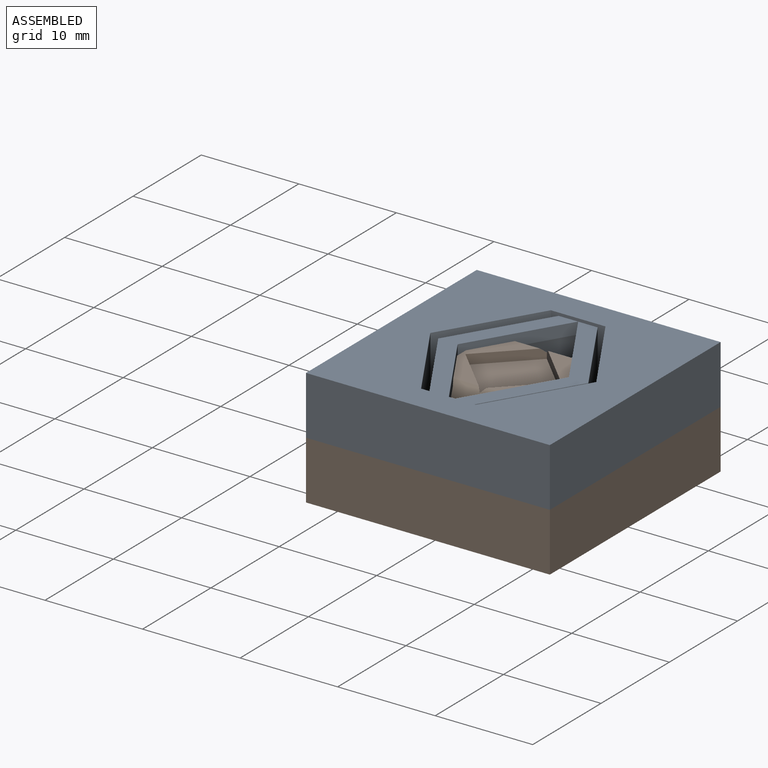
[diagram: assembled view]
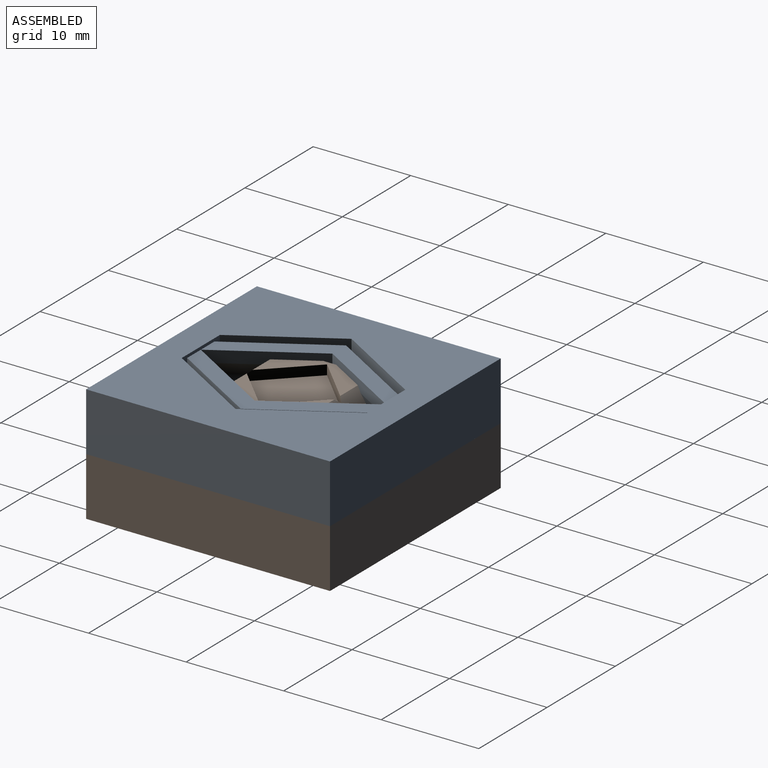
[diagram: assembled view, second angle]
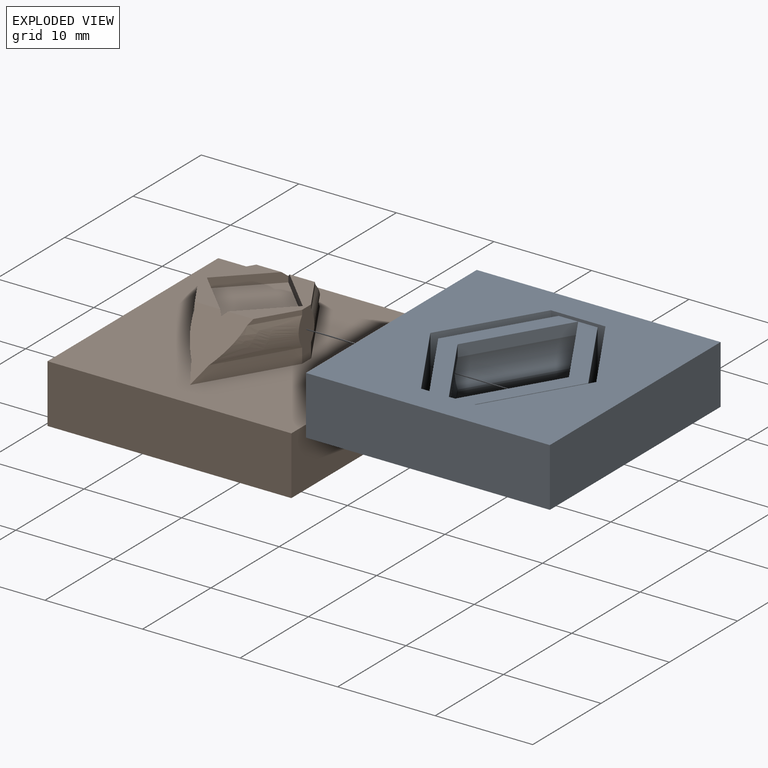
[diagram: exploded view]
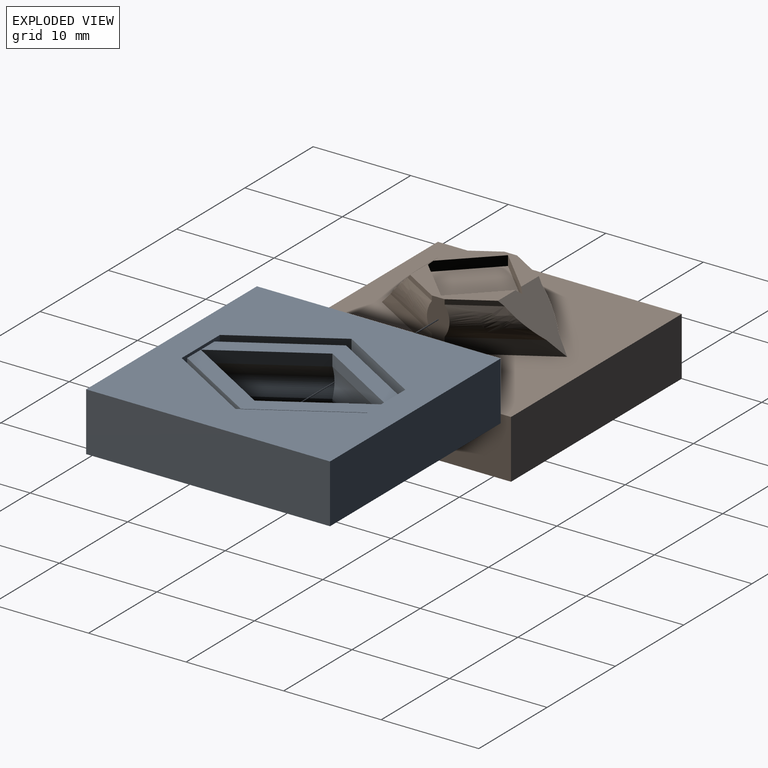
[diagram: exploded view, second angle]
FCSTD DOCUMENT  (FreeCAD 1.1R14555 (Git shallow))
Label: DockLink_assembly
License: All rights reserved
LicenseURL: https://en.wikipedia.org/wiki/All_rights_reserved
objects: App::Link×2, App::Point×1, App::FeaturePython×1, Assembly::JointGroup×1, Assembly::AssemblyObject×1
EXTERNAL_REF file=DockLink_male.FCStd obj=Body
EXTERNAL_REF file=DockLink_female.FCStd obj=Body

FEATURE [App::Point] Origin001
  Role = Origin
FEATURE [App::Link] DockLink_male
  LinkedObject = -> <external DockLink_male.FCStd>#Body
FEATURE [App::Link] Body_DockLink_female
  LinkPlacement = pos=(1.5e-15,7.5e-15,6) rot=(0,1,0;3.14159rad)
  LinkedObject = -> <external DockLink_female.FCStd>#Body
  Placement = pos=(1.5e-15,7.5e-15,6) rot=(0,1,0;3.14159rad)
FEATURE [App::FeaturePython] Joint  label="Fixed"  # Assembly joint (typed FeaturePython)
  Angle = 0
  AngleMax = 0
  AngleMin = 0
  Detach1 = false
  Detach2 = false
  Distance = 0
  Distance2 = 0
  EnableAngleMax = false
  EnableAngleMin = false
  EnableLengthMax = false
  EnableLengthMin = false
  JointType = 0 (Fixed)
  LengthMax = 0
  LengthMin = 0
  Offset2 = pos=(0,0,0) rot=(0,0,1;3.14159rad)
  Placement1 = pos=(-1.1e-15,-15,6) rot=(0.707107,0,0.707107;3.14159rad)
  Placement2 = pos=(0,-15,0) rot=(0,-1,0;4.71239rad)
  Reference1 = -> Assembly [Body_DockLink_female.Edge4,Body_DockLink_female.Edge4]
  Reference2 = -> Assembly [DockLink_male.Edge39,DockLink_male.Edge39]
  Suppressed = false
FEATURE [Assembly::JointGroup] Joints
  Group = -> [Joint]
FEATURE [Assembly::AssemblyObject] Assembly
  Group = -> [Joints,DockLink_male,Body_DockLink_female,Joint]
  Origin = -> Origin
  Type = Assembly

RESOLVED EXTERNAL PARTS (link-assembly join: the EXTERNAL_REF files above that resolve inside this repo's crawl, each included once):
---- part DockLink_female.FCStd = doc fcstd_dc0a90694cc4 ----
FCSTD DOCUMENT  (FreeCAD 1.1R20251031 (Git shallow))
Label: DockLink_female
License: All rights reserved
LicenseURL: https://en.wikipedia.org/wiki/All_rights_reserved
objects: Sketcher::SketchObject×5, App::Point×1, App::VarSet×1, PartDesign::Pad×1, PartDesign::SubtractiveLoft×1, PartDesign::Chamfer×1, PartDesign::Pocket×1, PartDesign::Body×1
note: 23 computed .brp shape members not serialized (recipe doc carries the construction recipe); baked Part::Feature solids carry a one-line shape summary decoded from their .brp

FEATURE [App::Point] Origin001
  Role = Origin
FEATURE [Sketcher::SketchObject] Sketch  label="Sketch_clip_base"
  ArcFitTolerance = 1e-06
  AttachmentSupport = -> [Origin]
  ExternalTypes = [0]
  FullyConstrained = true
  MakeInternals = false
  MapMode = 5
  expr: Constraints[10] = VarSet.height_printbase
  expr: Constraints[11] = VarSet.width_printbase
  expr: Constraints[59] = VarSet.thickness_clip
  expr: Constraints[60] = VarSet.indent_depth_clip + 0.5 mm
  expr: Constraints[70] = VarSet.border_vert
  expr: Constraints[71] = VarSet.border_hori
  sketch-geometry (28):
    g0: LineSegment StartX=-12.5 StartY=12.5 StartZ=0 EndX=-12.5 EndY=-12.5 EndZ=0
    g1: LineSegment StartX=-12.5 StartY=-12.5 StartZ=0 EndX=12.5 EndY=-12.5 EndZ=0
    g2: LineSegment StartX=12.5 StartY=-12.5 StartZ=0 EndX=12.5 EndY=12.5 EndZ=0
    g3: LineSegment StartX=12.5 StartY=12.5 StartZ=0 EndX=-12.5 EndY=12.5 EndZ=0
    g4: GeomPoint [constr] X=0 Y=0 Z=0
    g5: LineSegment [constr] StartX=-8.5 StartY=9.5 StartZ=0 EndX=-8.5 EndY=-9.5 EndZ=0
    g6: LineSegment [constr] StartX=-8.5 StartY=-9.5 StartZ=0 EndX=8.5 EndY=-9.5 EndZ=0
    g7: LineSegment [constr] StartX=8.5 StartY=-9.5 StartZ=0 EndX=8.5 EndY=9.5 EndZ=0
    g8: LineSegment [constr] StartX=8.5 StartY=9.5 StartZ=0 EndX=-8.5 EndY=9.5 EndZ=0
    g9: GeomPoint [constr] X=0 Y=0 Z=0
    g10: LineSegment StartX=0 StartY=9.5 StartZ=0 EndX=-5.7 EndY=0 EndZ=0
    g11: LineSegment StartX=-5.7 StartY=0 StartZ=0 EndX=0 EndY=-9.5 EndZ=0
    g12: LineSegment StartX=3e-16 StartY=-9.5 StartZ=0 EndX=5.7 EndY=0 EndZ=0
    g13: LineSegment StartX=5.7 StartY=0 StartZ=0 EndX=0 EndY=9.5 EndZ=0
    g14: LineSegment StartX=-2 StartY=9.5 StartZ=0 EndX=-7.7 EndY=0 EndZ=0
    g15: LineSegment StartX=-7.7 StartY=0 StartZ=0 EndX=-2 EndY=-9.5 EndZ=0
    g16: LineSegment StartX=2 StartY=-9.5 StartZ=0 EndX=7.7 EndY=0 EndZ=0
    g17: LineSegment StartX=7.7 StartY=0 StartZ=0 EndX=2 EndY=9.5 EndZ=0
    g18: LineSegment StartX=-8.5 StartY=5.9e-15 StartZ=0 EndX=-2.8 EndY=9.5 EndZ=0
    g19: LineSegment StartX=-8.5 StartY=5.9e-15 StartZ=0 EndX=-2.8 EndY=-9.5 EndZ=0
    g20: LineSegment StartX=2.8 StartY=-9.5 StartZ=0 EndX=8.5 EndY=5.3e-15 EndZ=0
    g21: LineSegment StartX=8.5 StartY=5.3e-15 StartZ=0 EndX=2.8 EndY=9.5 EndZ=0
    g22: LineSegment [constr] StartX=-7.7 StartY=0 StartZ=0 EndX=-5.7 EndY=0 EndZ=0
    g23: LineSegment [constr] StartX=5.7 StartY=0 StartZ=0 EndX=7.7 EndY=0 EndZ=0
    g24: LineSegment StartX=-2.8 StartY=9.5 StartZ=0 EndX=-2 EndY=9.5 EndZ=0
    g25: LineSegment StartX=2 StartY=9.5 StartZ=0 EndX=2.8 EndY=9.5 EndZ=0
    g26: LineSegment StartX=-2.8 StartY=-9.5 StartZ=0 EndX=-2 EndY=-9.5 EndZ=0
    g27: LineSegment StartX=2 StartY=-9.5 StartZ=0 EndX=2.8 EndY=-9.5 EndZ=0
  constraints (72):
    c: Coincident(g0,g1)
    c: Coincident(g1,g2)
    c: Coincident(g2,g3)
    c: Coincident(g3,g0)
    c: Vertical(g0)
    c: Vertical(g2)
    c: Horizontal(g1)
    c: Horizontal(g3)
    c: Symmetric(g2,g0,g4)
    c: Coincident(g4,g-1)
    c: DistanceY(g0,g0) = 25
    c: DistanceX(g3,g3) = 25
    c: Coincident(g5,g6)
    c: Coincident(g6,g7)
    c: Coincident(g7,g8)
    c: Coincident(g8,g5)
    c: Vertical(g5)
    c: Vertical(g7)
    c: Horizontal(g6)
    c: Horizontal(g8)
    c: Symmetric(g7,g5,g9)
    c: Coincident(g9,g4)
    c: Symmetric(g8,g8,g10)
    c: PointOnObject(g10,g-1)
    c: Coincident(g11,g10)
    c: Symmetric(g6,g6,g11)
    c: Coincident(g12,g11)
    c: Coincident(g13,g12)
    c: Coincident(g13,g10)
    c: PointOnObject(g14,g8)
    c: PointOnObject(g14,g-1)
    c: Coincident(g15,g14)
    c: PointOnObject(g15,g6)
    c: PointOnObject(g16,g6)
    c: PointOnObject(g16,g-1)
    c: Coincident(g17,g16)
    c: PointOnObject(g17,g8)
    c: Parallel(g10,g14)
    c: Parallel(g11,g15)
    c: Parallel(g12,g16)
    c: Parallel(g13,g17)
    c: Symmetric(g5,g5,g18)
    c: PointOnObject(g18,g8)
    c: Coincident(g19,g18)
    c: PointOnObject(g19,g6)
    c: PointOnObject(g20,g6)
    c: Symmetric(g7,g7,g20)
    c: Coincident(g21,g20)
    c: PointOnObject(g21,g8)
    c: Parallel(g17,g21)
    c: Parallel(g16,g20)
    c: Parallel(g15,g19)
    c: Parallel(g18,g14)
    c: Coincident(g22,g14)
    c: Coincident(g22,g10)
    c: Coincident(g23,g12)
    c: Coincident(g23,g16)
    c: Equal(g22,g23)
    c: Symmetric(g10,g12,g4)
    c: Distance(g22,g22) = 2
    c: Distance(g14,g18) = 0.8
    c: DistanceX(g10,g12) = 11.4  'width_male'
    c: Coincident(g24,g18)
    c: Coincident(g24,g14)
    c: Coincident(g25,g17)
    c: Coincident(g25,g21)
    c: Coincident(g26,g19)
    c: Coincident(g26,g15)
    c: Coincident(g27,g16)
    c: Coincident(g27,g20)
    c: Distance(g1,g6) = 3
    c: Distance(g2,g7) = 4
FEATURE [App::VarSet] VarSet
  border_hori = 4
  border_vert = 3
  height_clip = 20
  height_printbase = 25
  indent_depth_clip = 0.3
  indent_distance = 3
  indent_height = 3
  thickness_base = 6
  thickness_clip = 2
  width_clip = 20
  width_printbase = 25
FEATURE [PartDesign::Pad] Pad  label="Pad_clip_base"
  Direction = (0,0,1)
  Length = 6
  Length2 = 10
  Profile = -> Sketch
  ReferenceAxis = -> Sketch [N_Axis]
  Refine = true
  SideType = 0
  Suppressed = false
  Type = 0
  Type2 = 0
  expr: Length = VarSet.thickness_base
FEATURE [Sketcher::SketchObject] Sketch002  label="Sketch_indent_top"
  ArcFitTolerance = 1e-06
  AttachmentOffset = pos=(0,0,-1.5) rot=(0,0,1;0rad)
  AttachmentSupport = -> [Pad]
  ExternalGeometry = -> [Pad]
  ExternalTypes = [0,0,0,0]
  FullyConstrained = true
  MakeInternals = false
  MapMode = 5
  Placement = pos=(0,0,4.5) rot=(0,0,1;0rad)
  expr: .AttachmentOffset.Base.z = -VarSet.indent_distance + VarSet.indent_height / 2
  sketch-geometry (4):
    g0: LineSegment StartX=-5.7 StartY=0 StartZ=0 EndX=-5.3e-15 EndY=-9.5 EndZ=0
    g1: LineSegment StartX=-5.3e-15 StartY=-9.5 StartZ=0 EndX=5.7 EndY=0 EndZ=0
    g2: LineSegment StartX=-5.7 StartY=0 StartZ=0 EndX=-2.7e-15 EndY=9.5 EndZ=0
    g3: LineSegment StartX=5.7 StartY=0 StartZ=0 EndX=-3.6e-15 EndY=9.5 EndZ=0
  constraints (8):
    c: Coincident(g0,g-5)
    c: Coincident(g0,g-6)
    c: Coincident(g1,g0)
    c: Coincident(g1,g-4)
    c: Coincident(g2,g0)
    c: Coincident(g2,g-3)
    c: Coincident(g3,g1)
    c: Coincident(g3,g2)
FEATURE [Sketcher::SketchObject] Sketch003  label="Sketch_indent_bottom"
  ArcFitTolerance = 1e-06
  AttachmentOffset = pos=(0,0,-4.5) rot=(0,0,1;0rad)
  AttachmentSupport = -> [Pad]
  ExternalGeometry = -> [Pad]
  ExternalTypes = [0,0,0,0]
  FullyConstrained = true
  MakeInternals = false
  MapMode = 5
  Placement = pos=(0,0,1.5) rot=(0,0,1;0rad)
  expr: .AttachmentOffset.Base.z = -VarSet.indent_distance - VarSet.indent_height / 2
  sketch-geometry (4):
    g0: LineSegment StartX=-5.7 StartY=0 StartZ=0 EndX=-9e-16 EndY=9.5 EndZ=0
    g1: LineSegment StartX=-9e-16 StartY=9.5 StartZ=0 EndX=5.7 EndY=0 EndZ=0
    g2: LineSegment StartX=9e-16 StartY=-9.5 StartZ=0 EndX=5.7 EndY=0 EndZ=0
    g3: LineSegment StartX=-5.7 StartY=0 StartZ=0 EndX=9e-16 EndY=-9.5 EndZ=0
  constraints (8):
    c: Coincident(g0,g-4)
    c: Coincident(g0,g-5)
    c: Coincident(g1,g0)
    c: Coincident(g1,g-6)
    c: Coincident(g2,g-3)
    c: Coincident(g2,g1)
    c: Coincident(g3,g0)
    c: Coincident(g3,g2)
FEATURE [Sketcher::SketchObject] Sketch001  label="Sketch_indent_middle"
  ArcFitTolerance = 1e-06
  AttachmentOffset = pos=(0,0,-3) rot=(0,0,1;0rad)
  AttachmentSupport = -> [Pad]
  ExternalGeometry = -> [Pad,Sketch003]
  ExternalTypes = [0,0,0,0,0,0,0,0]
  FullyConstrained = true
  MakeInternals = false
  MapMode = 5
  Placement = pos=(0,0,3) rot=(0,0,1;0rad)
  expr: .AttachmentOffset.Base.z = -VarSet.indent_distance
  expr: Constraints[1] = VarSet.indent_depth_clip
  sketch-geometry (4):
    g0: LineSegment StartX=-6 StartY=0 StartZ=0 EndX=0 EndY=10 EndZ=0
    g1: LineSegment StartX=0 StartY=10 StartZ=0 EndX=6 EndY=0 EndZ=0
    g2: LineSegment StartX=6 StartY=0 StartZ=0 EndX=0 EndY=-10 EndZ=0
    g3: LineSegment StartX=-6 StartY=0 StartZ=0 EndX=0 EndY=-10 EndZ=0
  constraints (12):
    c: PointOnObject(g0,g-1)
    c: Distance(g0,g-3) = 0.3
    c: PointOnObject(g0,g-2)
    c: Coincident(g1,g0)
    c: PointOnObject(g1,g-1)
    c: Coincident(g2,g1)
    c: PointOnObject(g2,g-2)
    c: Coincident(g3,g0)
    c: Coincident(g3,g2)
    c: Parallel(g3,g-7)
    c: Parallel(g1,g-9)
    c: Parallel(g2,g-10)
FEATURE [PartDesign::SubtractiveLoft] SubtractiveLoft
  BaseFeature = -> Pad
  Closed = false
  Profile = -> Sketch002
  Refine = true
  Ruled = false
  Sections = -> [Sketch001,Sketch003]
  Suppressed = false
FEATURE [PartDesign::Chamfer] Chamfer
  Angle = 45
  Base = -> SubtractiveLoft [Edge32,Edge29,Edge30,Edge31]
  BaseFeature = -> SubtractiveLoft
  ChamferType = 1
  FlipDirection = false
  Refine = true
  Size = 0.5
  Size2 = 1.3
  SupportTransform = false
  Suppressed = false
  UseAllEdges = false
  expr: Size = VarSet.thickness_clip - 1.5 mm
  expr: Size2 = VarSet.indent_distance - VarSet.indent_height / 2 - 0.2 mm
FEATURE [Sketcher::SketchObject] Sketch004
  ArcFitTolerance = 1e-06
  AttachmentSupport = -> [SubtractiveLoft]
  ExternalGeometry = -> [SubtractiveLoft]
  ExternalTypes = [0,0,0,0]
  FullyConstrained = true
  MakeInternals = false
  MapMode = 5
  Placement = pos=(0,0,0) rot=(1,0,0;3.14159rad)
  sketch-geometry (2):
    g0: LineSegment StartX=-2.8 StartY=-9.5 StartZ=0 EndX=2.8 EndY=-9.5 EndZ=0
    g1: LineSegment StartX=-2.8 StartY=9.5 StartZ=0 EndX=2.8 EndY=9.5 EndZ=0
  constraints (4):
    c: Coincident(g0,g-5)
    c: Coincident(g0,g-6)
    c: Coincident(g1,g-3)
    c: Coincident(g1,g-4)
FEATURE [PartDesign::Pocket] Pocket
  BaseFeature = -> Chamfer
  Direction = (0,0,1)
  Length = 0.3
  Length2 = 5
  Profile = -> Sketch004
  ReferenceAxis = -> Sketch004 [N_Axis]
  Refine = true
  SideType = 0
  Suppressed = false
  Type = 0
  Type2 = 0
FEATURE [PartDesign::Body] Body  label="Body_DockLink_female"
  AllowCompound = true
  Group = -> [Sketch,Pad,Sketch001,Sketch002,Sketch003,SubtractiveLoft,Chamfer,VarSet,Sketch004,Pocket]
  Origin = -> Origin
  Tip = -> Pocket
---- part DockLink_male.FCStd = doc fcstd_4d2ef619000e ----
FCSTD DOCUMENT  (FreeCAD 1.1R20251031 (Git shallow))
Label: DockLink_male
License: All rights reserved
LicenseURL: https://en.wikipedia.org/wiki/All_rights_reserved
objects: Sketcher::SketchObject×8, PartDesign::Pocket×3, PartDesign::Pad×2, App::Point×1, App::VarSet×1, PartDesign::AdditiveLoft×1, PartDesign::Body×1
note: 35 computed .brp shape members not serialized (recipe doc carries the construction recipe); baked Part::Feature solids carry a one-line shape summary decoded from their .brp
EXTERNAL_REF file=DockLink_female.FCStd obj=VarSet

FEATURE [App::Point] Origin001
  Role = Origin
FEATURE [Sketcher::SketchObject] Sketch  label="Sketch_Base"
  ArcFitTolerance = 1e-06
  AttachmentSupport = -> [Origin]
  ExternalTypes = [0]
  FullyConstrained = true
  MakeInternals = false
  MapMode = 5
  expr: Constraints[10] = <<DockLink_female>>#VarSet.width_printbase
  expr: Constraints[11] = <<DockLink_female>>#VarSet.width_printbase
  expr: Constraints[22] = <<DockLink_female>>#VarSet.border_vert
  expr: Constraints[23] = <<DockLink_female>>#VarSet.border_hori
  sketch-geometry (10):
    g0: LineSegment StartX=-12.5 StartY=12.5 StartZ=0 EndX=-12.5 EndY=-12.5 EndZ=0
    g1: LineSegment StartX=-12.5 StartY=-12.5 StartZ=0 EndX=12.5 EndY=-12.5 EndZ=0
    g2: LineSegment StartX=12.5 StartY=-12.5 StartZ=0 EndX=12.5 EndY=12.5 EndZ=0
    g3: LineSegment StartX=12.5 StartY=12.5 StartZ=0 EndX=-12.5 EndY=12.5 EndZ=0
    g4: GeomPoint [constr] X=0 Y=0 Z=0
    g5: LineSegment [constr] StartX=-8.5 StartY=9.5 StartZ=0 EndX=-8.5 EndY=-9.5 EndZ=0
    g6: LineSegment [constr] StartX=-8.5 StartY=-9.5 StartZ=0 EndX=8.5 EndY=-9.5 EndZ=0
    g7: LineSegment [constr] StartX=8.5 StartY=-9.5 StartZ=0 EndX=8.5 EndY=9.5 EndZ=0
    g8: LineSegment [constr] StartX=8.5 StartY=9.5 StartZ=0 EndX=-8.5 EndY=9.5 EndZ=0
    g9: GeomPoint [constr] X=0 Y=0 Z=0
  constraints (24):
    c: Coincident(g0,g1)
    c: Coincident(g1,g2)
    c: Coincident(g2,g3)
    c: Coincident(g3,g0)
    c: Vertical(g0)
    c: Vertical(g2)
    c: Horizontal(g1)
    c: Horizontal(g3)
    c: Symmetric(g2,g0,g4)
    c: Coincident(g4,g-1)
    c: DistanceX(g3,g3) = 25
    c: DistanceY(g0,g0) = 25
    c: Coincident(g5,g6)
    c: Coincident(g6,g7)
    c: Coincident(g7,g8)
    c: Coincident(g8,g5)
    c: Vertical(g5)
    c: Vertical(g7)
    c: Horizontal(g6)
    c: Horizontal(g8)
    c: Symmetric(g7,g5,g9)
    c: Coincident(g9,g4)
    c: Distance(g3,g8) = 3
    c: Distance(g2,g7) = 4
FEATURE [App::VarSet] VarSet
  diameter_feet = 6.35
  feet_gap = 0.3
  thickness_base = 6
FEATURE [PartDesign::Pad] Pad  label="Pad_Base"
  Direction = (0,0,1)
  Length = 6
  Length2 = 10
  Profile = -> Sketch
  ReferenceAxis = -> Sketch [N_Axis]
  Refine = true
  Reversed = true
  SideType = 0
  Suppressed = false
  Type = 0
  Type2 = 0
  expr: Length = VarSet.thickness_base
FEATURE [Sketcher::SketchObject] Sketch001  label="Sketch_stud"
  ArcFitTolerance = 1e-06
  AttachmentSupport = -> [Pad]
  ExternalGeometry = -> [Pad]
  ExternalTypes = [0,0,0,0]
  FullyConstrained = true
  MakeInternals = false
  MapMode = 5
  expr: Constraints[18] = <<DockLink_female>>#VarSet.width_printbase - 2 * (<<DockLink_female>>#VarSet.border_hori + <<DockLink_female>>#VarSet.thickness_clip + <<DockLink_female>>#VarSet.indent_depth_clip + 0.5 mm)
  expr: Constraints[19] = <<DockLink_female>>#VarSet.border_vert
  sketch-geometry (8):
    g0: LineSegment [constr] StartX=-12.5 StartY=12.5 StartZ=0 EndX=-12.5 EndY=-12.5 EndZ=0
    g1: LineSegment [constr] StartX=-12.5 StartY=-12.5 StartZ=0 EndX=12.5 EndY=-12.5 EndZ=0
    g2: LineSegment [constr] StartX=12.5 StartY=-12.5 StartZ=0 EndX=12.5 EndY=12.5 EndZ=0
    g3: LineSegment [constr] StartX=12.5 StartY=12.5 StartZ=0 EndX=-12.5 EndY=12.5 EndZ=0
    g4: LineSegment StartX=0 StartY=9.5 StartZ=0 EndX=-5.7 EndY=0 EndZ=0
    g5: LineSegment StartX=-5.7 StartY=0 StartZ=0 EndX=0 EndY=-9.5 EndZ=0
    g6: LineSegment StartX=0 StartY=-9.5 StartZ=0 EndX=5.7 EndY=0 EndZ=0
    g7: LineSegment StartX=5.7 StartY=0 StartZ=0 EndX=0 EndY=9.5 EndZ=0
  constraints (20):
    c: Coincident(g0,g1)
    c: Coincident(g1,g2)
    c: Coincident(g2,g3)
    c: Coincident(g3,g0)
    c: Vertical(g0)
    c: Vertical(g2)
    c: Horizontal(g1)
    c: Horizontal(g3)
    c: Coincident(g0,g-3)
    c: Coincident(g1,g-4)
    c: PointOnObject(g4,g-2)
    c: PointOnObject(g4,g-1)
    c: Coincident(g5,g4)
    c: Coincident(g6,g5)
    c: Coincident(g7,g6)
    c: Coincident(g7,g4)
    c: Symmetric(g4,g5,g-1)
    c: Symmetric(g4,g6,g-1)
    c: Distance(g4,g6) = 11.4
    c: Distance(g4,g3) = 3
FEATURE [PartDesign::Pad] Pad001  label="Pad_stud"
  BaseFeature = -> Pad
  Direction = (0,0,1)
  Length = 5
  Length2 = 10
  Profile = -> Sketch001
  ReferenceAxis = -> Sketch001 [N_Axis]
  Refine = true
  SideType = 0
  Suppressed = false
  Type = 0
  Type2 = 0
  expr: Length = <<DockLink_female>>#VarSet.thickness_base - 1 mm
FEATURE [Sketcher::SketchObject] Sketch002  label="Sketch_nose_top"
  ArcFitTolerance = 1e-06
  AttachmentOffset = pos=(0,0,-0.5) rot=(0,0,1;0rad)
  AttachmentSupport = -> [Pad001]
  ExternalGeometry = -> [Pad001]
  ExternalTypes = [0,0,0,0]
  FullyConstrained = true
  MakeInternals = false
  MapMode = 5
  Placement = pos=(0,0,4.5) rot=(0,0,1;0rad)
  expr: .AttachmentOffset.Base.z = <<DockLink_female>>#VarSet.indent_distance - <<DockLink_female>>#VarSet.thickness_base + 1 mm + <<DockLink_female>>#VarSet.indent_height / 2
FEATURE [Sketcher::SketchObject] Sketch003  label="Sketch_nose_bottom"
  ArcFitTolerance = 1e-06
  AttachmentOffset = pos=(0,0,-3.5) rot=(0,0,1;0rad)
  AttachmentSupport = -> [Pad001]
  ExternalGeometry = -> [Pad001]
  ExternalTypes = [0,0,0,0]
  FullyConstrained = true
  MakeInternals = false
  MapMode = 5
  Placement = pos=(0,0,1.5) rot=(0,0,1;0rad)
  expr: .AttachmentOffset.Base.z = <<DockLink_female>>#VarSet.indent_distance - <<DockLink_female>>#VarSet.thickness_base + 1 mm - <<DockLink_female>>#VarSet.indent_height / 2
FEATURE [Sketcher::SketchObject] Sketch004  label="Sketch_nose_middle"
  ArcFitTolerance = 1e-06
  AttachmentOffset = pos=(0,0,-2) rot=(0,0,1;0rad)
  AttachmentSupport = -> [Pad001]
  ExternalGeometry = -> [Pad001]
  ExternalTypes = [0,0,0,0]
  FullyConstrained = true
  MakeInternals = false
  MapMode = 5
  Placement = pos=(0,0,3) rot=(0,0,1;0rad)
  expr: .AttachmentOffset.Base.z = <<DockLink_female>>#VarSet.indent_distance - <<DockLink_female>>#VarSet.thickness_base + 1 mm
  expr: Constraints[11] = DockLink_female#VarSet.indent_depth_clip
  sketch-geometry (4):
    g0: LineSegment StartX=0 StartY=10 StartZ=0 EndX=-6 EndY=0 EndZ=0
    g1: LineSegment StartX=-6 StartY=0 StartZ=0 EndX=0 EndY=-10 EndZ=0
    g2: LineSegment StartX=0 StartY=-10 StartZ=0 EndX=6 EndY=0 EndZ=0
    g3: LineSegment StartX=6 StartY=0 StartZ=0 EndX=0 EndY=10 EndZ=0
  constraints (12):
    c: PointOnObject(g0,g-2)
    c: PointOnObject(g0,g-1)
    c: Coincident(g1,g0)
    c: PointOnObject(g1,g-2)
    c: Coincident(g2,g1)
    c: PointOnObject(g2,g-1)
    c: Coincident(g3,g2)
    c: Coincident(g3,g0)
    c: Parallel(g-3,g0)
    c: Parallel(g3,g-4)
    c: Parallel(g2,g-5)
    c: Distance(g0,g-6) = 0.3
FEATURE [PartDesign::AdditiveLoft] AdditiveLoft  label="AdditiveLoft_nose"
  BaseFeature = -> Pad001
  Closed = false
  Profile = -> Sketch002
  Refine = true
  Ruled = false
  Sections = -> [Sketch004,Sketch003]
  Suppressed = false
FEATURE [Sketcher::SketchObject] Sketch005  label="Sketch_feet_recess"
  ArcFitTolerance = 1e-06
  AttachmentSupport = -> [AdditiveLoft]
  ExternalTypes = [0]
  FullyConstrained = true
  MakeInternals = false
  MapMode = 5
  Placement = pos=(0,0,5) rot=(0,0,1;0rad)
  expr: Constraints[13] = VarSet.diameter_feet + 2 * VarSet.feet_gap
  sketch-geometry (5):
    g0: LineSegment StartX=0 StartY=-4.91439 StartZ=0 EndX=4.91439 EndY=9e-16 EndZ=0
    g1: LineSegment StartX=4.91439 StartY=9e-16 StartZ=0 EndX=9e-16 EndY=4.91439 EndZ=0
    g2: LineSegment StartX=9e-16 StartY=4.91439 StartZ=0 EndX=-4.91439 EndY=9e-16 EndZ=0
    g3: LineSegment StartX=-4.91439 StartY=9e-16 StartZ=0 EndX=0 EndY=-4.91439 EndZ=0
    g4: Circle [constr] CenterX=0 CenterY=0 CenterZ=0 NormalX=0 NormalY=0 NormalZ=1 AngleXU=0 Radius=4.91439
  constraints (14):
    c: Coincident(g0,g1)
    c: Coincident(g1,g2)
    c: Coincident(g2,g3)
    c: Coincident(g3,g0)
    c: Equal(g0,g1)
    c: Equal(g0,g2)
    c: Equal(g0,g3)
    c: PointOnObject(g0,g4)
    c: PointOnObject(g1,g4)
    c: PointOnObject(g2,g4)
    c: PointOnObject(g3,g4)
    c: Coincident(g4,g-1)
    c: PointOnObject(g3,g-2)
    c: Distance(g0,g2) = 6.95
FEATURE [PartDesign::Pocket] Pocket  label="Pocket_feet_recess"
  BaseFeature = -> AdditiveLoft
  Direction = (0,0,-1)
  Length = 1
  Length2 = 5
  Profile = -> Sketch005
  ReferenceAxis = -> Sketch005 [N_Axis]
  Refine = true
  SideType = 0
  Suppressed = false
  Type = 0
  Type2 = 0
FEATURE [Sketcher::SketchObject] Sketch006  label="Sketch_feet_slant"
  ArcFitTolerance = 1e-06
  AttachmentSupport = -> [Origin]
  ExternalGeometry = -> [Pocket]
  ExternalTypes = [0,0,0,0,0,0]
  FullyConstrained = true
  MakeInternals = false
  MapMode = 5
  Placement = pos=(0,0,0) rot=(0.57735,0.57735,0.57735;2.0944rad)
  expr: Constraints[20] = <<DockLink_female>>#VarSet.indent_depth_clip + 1 mm
  sketch-geometry (10):
    g0: LineSegment [constr] StartX=-9.5 StartY=1.5 StartZ=0 EndX=-9.5 EndY=5 EndZ=0
    g1: LineSegment [constr] StartX=9.5 StartY=1.5 StartZ=0 EndX=9.5 EndY=5 EndZ=0
    g2: LineSegment StartX=-10.8 StartY=0 StartZ=0 EndX=-10.8 EndY=5 EndZ=0
    g3: LineSegment StartX=-10.8 StartY=5 StartZ=0 EndX=-4.5 EndY=5 EndZ=0
    g4: LineSegment StartX=-4.5 StartY=5 StartZ=0 EndX=-9.5 EndY=0 EndZ=0
    g5: LineSegment StartX=-9.5 StartY=0 StartZ=0 EndX=-10.8 EndY=0 EndZ=0
    g6: LineSegment StartX=10.8 StartY=0 StartZ=0 EndX=10.8 EndY=5 EndZ=0
    g7: LineSegment StartX=10.8 StartY=5 StartZ=0 EndX=4.5 EndY=5 EndZ=0
    g8: LineSegment StartX=4.5 StartY=5 StartZ=0 EndX=9.5 EndY=0 EndZ=0
    g9: LineSegment StartX=9.5 StartY=0 StartZ=0 EndX=10.8 EndY=0 EndZ=0
  constraints (25):
    c: Coincident(g0,g-3)
    c: Coincident(g0,g-7)
    c: Coincident(g1,g-4)
    c: Coincident(g1,g-8)
    c: PointOnObject(g2,g-1)
    c: Vertical(g2)
    c: Coincident(g3,g2)
    c: Horizontal(g3)
    c: Coincident(g4,g3)
    c: Coincident(g4,g-3)
    c: Coincident(g5,g4)
    c: Coincident(g5,g2)
    c: PointOnObject(g6,g-1)
    c: Vertical(g6)
    c: Coincident(g7,g6)
    c: Horizontal(g7)
    c: Coincident(g8,g7)
    c: Coincident(g8,g-4)
    c: Coincident(g9,g8)
    c: Coincident(g9,g6)
    c: Distance(g0,g2) = 1.3
    c: Angle(g4,g0) = 0.785398
    c: PointOnObject(g0,g3)
    c: Equal(g3,g7)
    c: Symmetric(g3,g7,g-2)
FEATURE [PartDesign::Pocket] Pocket001
  BaseFeature = -> Pocket
  Direction = (-1,0,0)
  Length = 5
  Length2 = 5
  Profile = -> Sketch006
  ReferenceAxis = -> Sketch006 [N_Axis]
  Refine = true
  SideType = 2
  Suppressed = false
  Type = 1
  Type2 = 0
FEATURE [Sketcher::SketchObject] Sketch007
  ArcFitTolerance = 1e-06
  AttachmentSupport = -> [Pocket001]
  ExternalGeometry = -> [Pocket001]
  ExternalTypes = [0,0,0,0,0,0]
  FullyConstrained = true
  MakeInternals = false
  MapMode = 5
  sketch-geometry (6):
    g0: LineSegment StartX=-5.3072 StartY=11.5 StartZ=0 EndX=-5.3072 EndY=-11.5 EndZ=0
    g1: LineSegment StartX=-5.3072 StartY=-11.5 StartZ=0 EndX=5.3072 EndY=-11.5 EndZ=0
    g2: LineSegment StartX=5.3072 StartY=-11.5 StartZ=0 EndX=5.3072 EndY=11.5 EndZ=0
    g3: LineSegment StartX=5.3072 StartY=11.5 StartZ=0 EndX=-5.3072 EndY=11.5 EndZ=0
    g4: GeomPoint [constr] X=0 Y=0 Z=0
    g5: GeomPoint [constr] X=5.3072 Y=4e-16 Z=0
  constraints (13):
    c: Coincident(g0,g1)
    c: Coincident(g1,g2)
    c: Coincident(g2,g3)
    c: Coincident(g3,g0)
    c: Vertical(g0)
    c: Vertical(g2)
    c: Horizontal(g1)
    c: Horizontal(g3)
    c: Symmetric(g2,g0,g4)
    c: Coincident(g4,g-1)
    c: Distance(g-4,g3) = 1
    c: Symmetric(g-7,g-8,g5)
    c: PointOnObject(g5,g2)
FEATURE [PartDesign::Pocket] Pocket002
  BaseFeature = -> Pocket001
  Direction = (0,0,-1)
  Length = 5
  Length2 = 5
  Profile = -> Sketch007
  ReferenceAxis = -> Sketch007 [N_Axis]
  Refine = true
  Reversed = true
  SideType = 0
  Suppressed = false
  Type = 1
  Type2 = 0
FEATURE [PartDesign::Body] Body  label="Body_DockLink_male"
  AllowCompound = true
  Group = -> [Sketch,Pad,Sketch001,Pad001,Sketch004,Sketch002,Sketch003,AdditiveLoft,Sketch005,Pocket,Sketch006,Pocket001,Sketch007,Pocket002]
  Origin = -> Origin
  Tip = -> Pocket002
